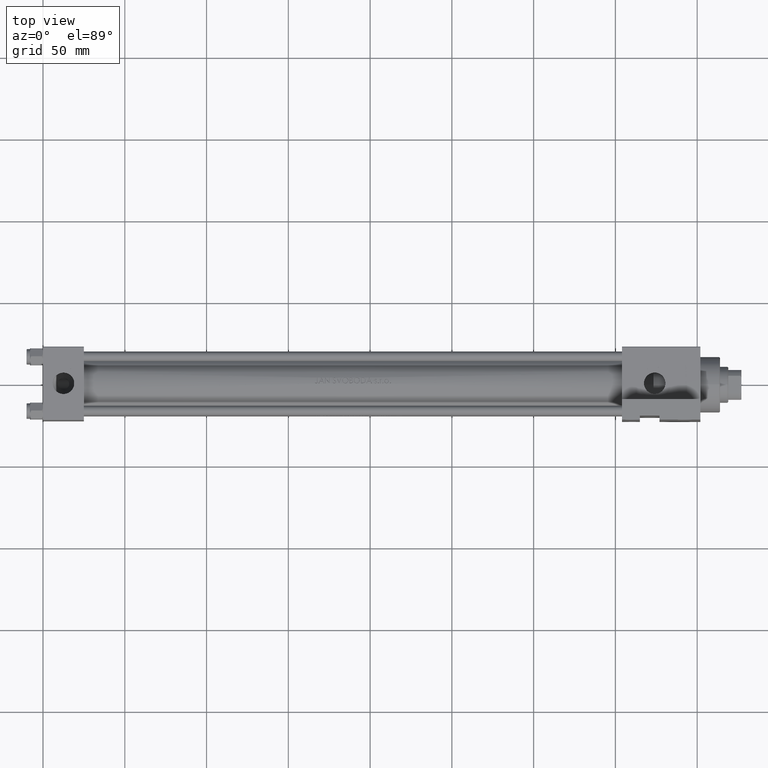
[diagram: clean part render]
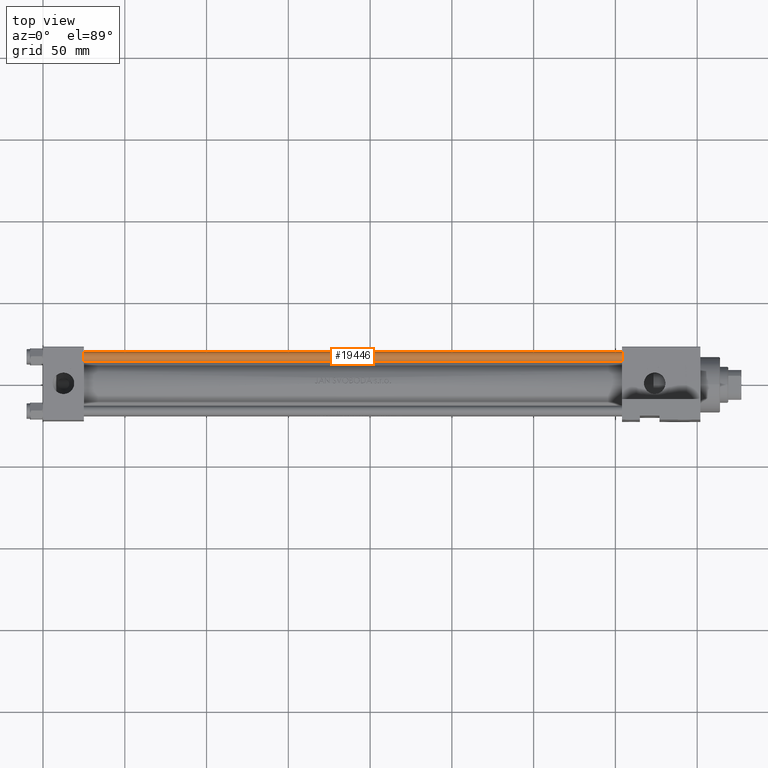
[diagram: same view with one face highlighted and labeled with its STEP entity id]
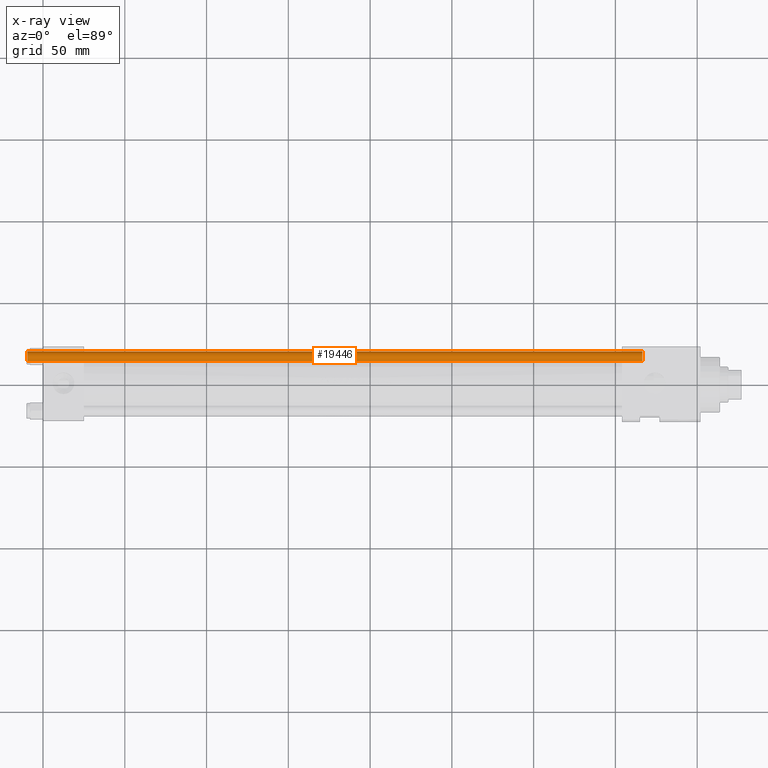
[diagram: x-ray of the same camera — body ghosted, the highlighted face saturated]
A machine part, top view. The second image highlights one B-rep face of the part: STEP entity #19446.
The next image is the same camera in x-ray: the body ghosted, the highlighted face saturated — about 0% of this face is hidden behind the body in this view.
In plain terms, the highlighted cylindrical surface (edge-blend (fillet) strip) has radius 3 mm, axis along (1, -0, 0).
Its self-contained STEP definition (entity closure, byte-faithful):
#1725 = EDGE_CURVE ( 'NONE', #26006, #30856, #18553, .T. ) ;
#3904 = VECTOR ( 'NONE', #25449, 1000.000000000000000 ) ;
#5387 = DIRECTION ( 'NONE',  ( 1.000000000000000000, 0.000000000000000000, 0.000000000000000000 ) ) ;
#5630 = CARTESIAN_POINT ( 'NONE',  ( 0.000000000000000000, 0.000000000000000000, 0.5000000000000559552 ) ) ;
#5668 = AXIS2_PLACEMENT_3D ( 'NONE', #41753, #20545, #20774 ) ;
#9049 = CARTESIAN_POINT ( 'NONE',  ( 0.000000000000000000, 0.000000000000000000, 376.5000000000000568 ) ) ;
#9944 = CARTESIAN_POINT ( 'NONE',  ( -3.000000000000000444, 0.000000000000000000, 376.5000000000000568 ) ) ;
#10063 = AXIS2_PLACEMENT_3D ( 'NONE', #9049, #21119, #31263 ) ;
#10309 = CIRCLE ( 'NONE', #15692, 3.000000000000000444 ) ;
#11223 = EDGE_CURVE ( 'NONE', #36120, #34086, #10309, .T. ) ;
#11439 = EDGE_LOOP ( 'NONE', ( #17567, #15328, #47484, #40861 ) ) ;
#11940 = CARTESIAN_POINT ( 'NONE',  ( 3.000000000000000444, 3.673940397442060361E-16, 0.5000000000000559552 ) ) ;
#12327 = FACE_OUTER_BOUND ( 'NONE', #11439, .T. ) ;
#15056 = CARTESIAN_POINT ( 'NONE',  ( 3.000000000000000444, 3.673940397442060361E-16, 376.5000000000000568 ) ) ;
#15328 = ORIENTED_EDGE ( 'NONE', *, *, #1725, .T. ) ;
#15692 = AXIS2_PLACEMENT_3D ( 'NONE', #5630, #38431, #5387 ) ;
#17366 = DIRECTION ( 'NONE',  ( -0.000000000000000000, -0.000000000000000000, -1.000000000000000000 ) ) ;
#17567 = ORIENTED_EDGE ( 'NONE', *, *, #47424, .F. ) ;
#18553 = CIRCLE ( 'NONE', #10063, 3.000000000000000444 ) ;
#19446 = ADVANCED_FACE ( 'NONE', ( #12327 ), #27050, .T. ) ;
#20545 = DIRECTION ( 'NONE',  ( -0.000000000000000000, -0.000000000000000000, -1.000000000000000000 ) ) ;
#20774 = DIRECTION ( 'NONE',  ( -1.000000000000000000, 0.000000000000000000, 0.000000000000000000 ) ) ;
#21119 = DIRECTION ( 'NONE',  ( 0.000000000000000000, 0.000000000000000000, -1.000000000000000000 ) ) ;
#21835 = LINE ( 'NONE', #35181, #3904 ) ;
#25449 = DIRECTION ( 'NONE',  ( -0.000000000000000000, -0.000000000000000000, -1.000000000000000000 ) ) ;
#26006 = VERTEX_POINT ( 'NONE', #15056 ) ;
#27050 = CYLINDRICAL_SURFACE ( 'NONE', #5668, 3.000000000000000444 ) ;
#28456 = LINE ( 'NONE', #35928, #36326 ) ;
#30856 = VERTEX_POINT ( 'NONE', #9944 ) ;
#31263 = DIRECTION ( 'NONE',  ( 1.000000000000000000, 0.000000000000000000, 0.000000000000000000 ) ) ;
#34086 = VERTEX_POINT ( 'NONE', #11940 ) ;
#35181 = CARTESIAN_POINT ( 'NONE',  ( -3.000000000000000444, 0.000000000000000000, 377.0000000000000000 ) ) ;
#35928 = CARTESIAN_POINT ( 'NONE',  ( 3.000000000000000444, 3.673940397442060361E-16, 377.0000000000000000 ) ) ;
#36120 = VERTEX_POINT ( 'NONE', #38778 ) ;
#36326 = VECTOR ( 'NONE', #17366, 1000.000000000000000 ) ;
#37338 = EDGE_CURVE ( 'NONE', #30856, #36120, #21835, .T. ) ;
#38431 = DIRECTION ( 'NONE',  ( -0.000000000000000000, -0.000000000000000000, 1.000000000000000000 ) ) ;
#38778 = CARTESIAN_POINT ( 'NONE',  ( -3.000000000000000444, 0.000000000000000000, 0.5000000000000559552 ) ) ;
#40861 = ORIENTED_EDGE ( 'NONE', *, *, #11223, .T. ) ;
#41753 = CARTESIAN_POINT ( 'NONE',  ( 0.000000000000000000, 0.000000000000000000, 377.0000000000000000 ) ) ;
#47424 = EDGE_CURVE ( 'NONE', #26006, #34086, #28456, .T. ) ;
#47484 = ORIENTED_EDGE ( 'NONE', *, *, #37338, .T. ) ;